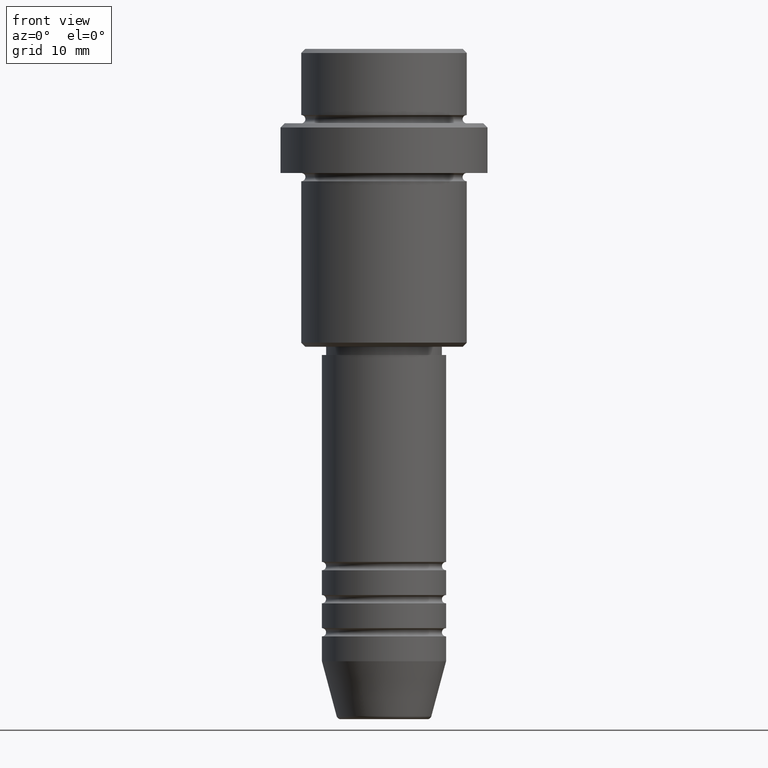
[diagram: clean part render]
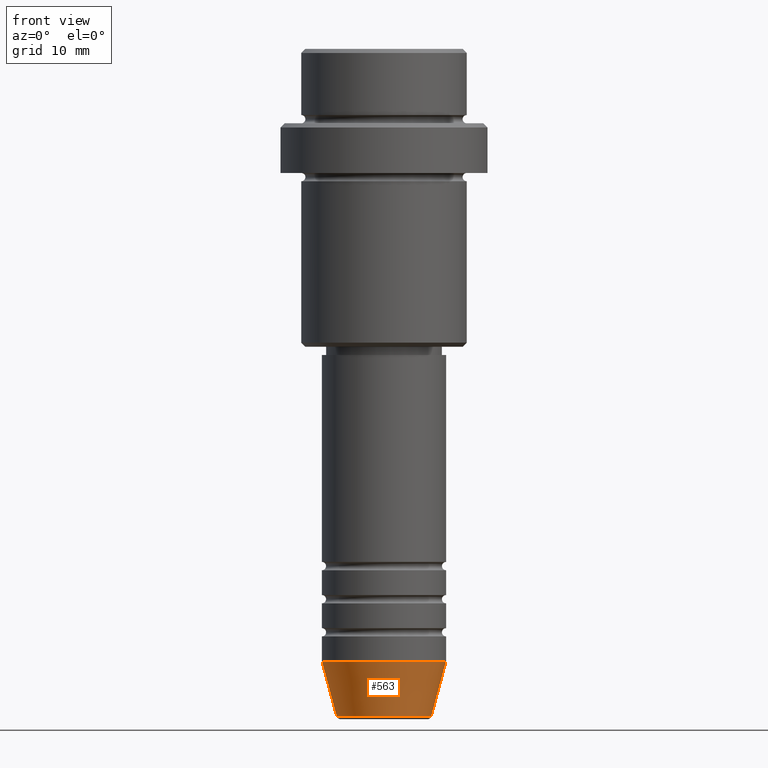
[diagram: same view with one face highlighted and labeled with its STEP entity id]
A machine part, front view. The second image highlights one B-rep face of the part: STEP entity #563.
In plain terms, the highlighted conical surface has half-angle 15 deg.
Its self-contained STEP definition (entity closure, byte-faithful):
#65 = VERTEX_POINT ( 'NONE', #1215 ) ;
#90 = VERTEX_POINT ( 'NONE', #464 ) ;
#118 = CONICAL_SURFACE ( 'NONE', #1394, 7.500000000000000000, 0.2617993877991500740 ) ;
#122 = VECTOR ( 'NONE', #533, 1000.000000000000000 ) ;
#161 = CIRCLE ( 'NONE', #341, 7.500000000000000000 ) ;
#190 = CARTESIAN_POINT ( 'NONE',  ( 7.500000000000000000, 0.000000000000000000, -74.00000000000000000 ) ) ;
#208 = LINE ( 'NONE', #642, #122 ) ;
#211 = ORIENTED_EDGE ( 'NONE', *, *, #1258, .T. ) ;
#256 = EDGE_CURVE ( 'NONE', #90, #65, #1121, .T. ) ;
#282 = ORIENTED_EDGE ( 'NONE', *, *, #859, .T. ) ;
#341 = AXIS2_PLACEMENT_3D ( 'NONE', #940, #1366, #1270 ) ;
#373 = ORIENTED_EDGE ( 'NONE', *, *, #256, .F. ) ;
#381 = DIRECTION ( 'NONE',  ( 1.000000000000000000, 0.000000000000000000, 0.000000000000000000 ) ) ;
#422 = DIRECTION ( 'NONE',  ( 1.000000000000000000, 0.000000000000000000, 0.000000000000000000 ) ) ;
#464 = CARTESIAN_POINT ( 'NONE',  ( -5.723655072137191269, 8.097153428560735915E-16, -80.62940952255125637 ) ) ;
#476 = ORIENTED_EDGE ( 'NONE', *, *, #483, .F. ) ;
#483 = EDGE_CURVE ( 'NONE', #65, #1227, #161, .T. ) ;
#531 = DIRECTION ( 'NONE',  ( -0.000000000000000000, -0.000000000000000000, 1.000000000000000000 ) ) ;
#533 = DIRECTION ( 'NONE',  ( 0.2588190451025213501, 0.000000000000000000, 0.9659258262890680902 ) ) ;
#537 = DIRECTION ( 'NONE',  ( -0.2588190451025213501, 3.169619151431772337E-17, 0.9659258262890680902 ) ) ;
#563 = ADVANCED_FACE ( 'NONE', ( #589 ), #118, .T. ) ;
#589 = FACE_OUTER_BOUND ( 'NONE', #680, .T. ) ;
#642 = CARTESIAN_POINT ( 'NONE',  ( 7.500000000000000000, 0.000000000000000000, -74.00000000000000000 ) ) ;
#680 = EDGE_LOOP ( 'NONE', ( #373, #211, #282, #476 ) ) ;
#682 = VERTEX_POINT ( 'NONE', #1076 ) ;
#708 = DIRECTION ( 'NONE',  ( -0.000000000000000000, -0.000000000000000000, 1.000000000000000000 ) ) ;
#859 = EDGE_CURVE ( 'NONE', #682, #1227, #208, .T. ) ;
#940 = CARTESIAN_POINT ( 'NONE',  ( 0.000000000000000000, 0.000000000000000000, -74.00000000000000000 ) ) ;
#1076 = CARTESIAN_POINT ( 'NONE',  ( 5.723655072137191269, 0.000000000000000000, -80.62940952255125637 ) ) ;
#1092 = CARTESIAN_POINT ( 'NONE',  ( 0.000000000000000000, 0.000000000000000000, -80.62940952255125637 ) ) ;
#1121 = LINE ( 'NONE', #1329, #1306 ) ;
#1215 = CARTESIAN_POINT ( 'NONE',  ( -7.500000000000000000, 9.184850993605147944E-16, -74.00000000000000000 ) ) ;
#1227 = VERTEX_POINT ( 'NONE', #190 ) ;
#1245 = CARTESIAN_POINT ( 'NONE',  ( 0.000000000000000000, 0.000000000000000000, -74.00000000000000000 ) ) ;
#1258 = EDGE_CURVE ( 'NONE', #90, #682, #1289, .T. ) ;
#1270 = DIRECTION ( 'NONE',  ( 1.000000000000000000, 0.000000000000000000, 0.000000000000000000 ) ) ;
#1289 = CIRCLE ( 'NONE', #1323, 5.723655072137191269 ) ;
#1306 = VECTOR ( 'NONE', #537, 1000.000000000000000 ) ;
#1323 = AXIS2_PLACEMENT_3D ( 'NONE', #1092, #531, #422 ) ;
#1329 = CARTESIAN_POINT ( 'NONE',  ( -7.500000000000000000, 9.184850993605147944E-16, -74.00000000000000000 ) ) ;
#1366 = DIRECTION ( 'NONE',  ( -0.000000000000000000, -0.000000000000000000, 1.000000000000000000 ) ) ;
#1394 = AXIS2_PLACEMENT_3D ( 'NONE', #1245, #708, #381 ) ;